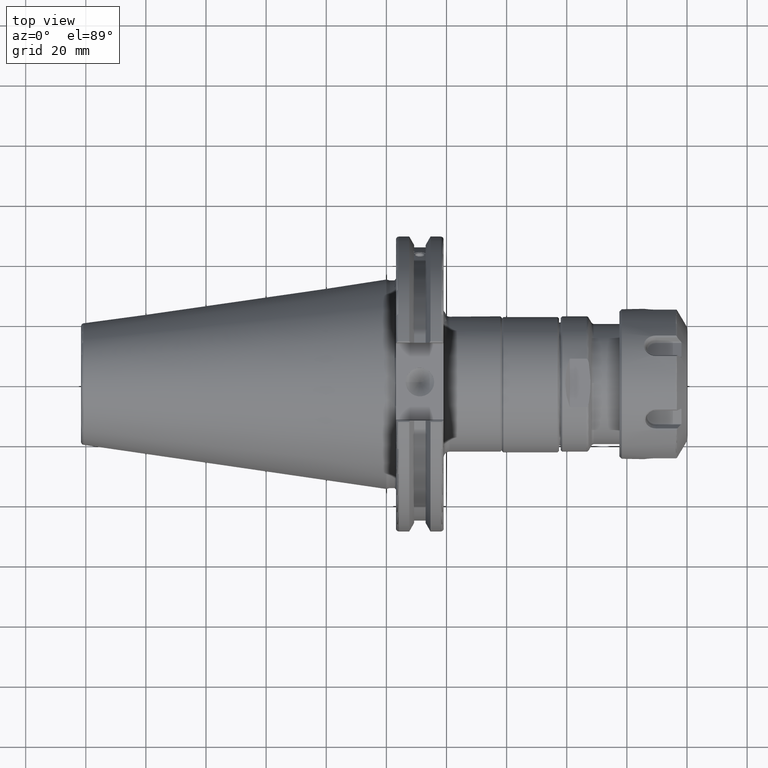
[diagram: clean part render]
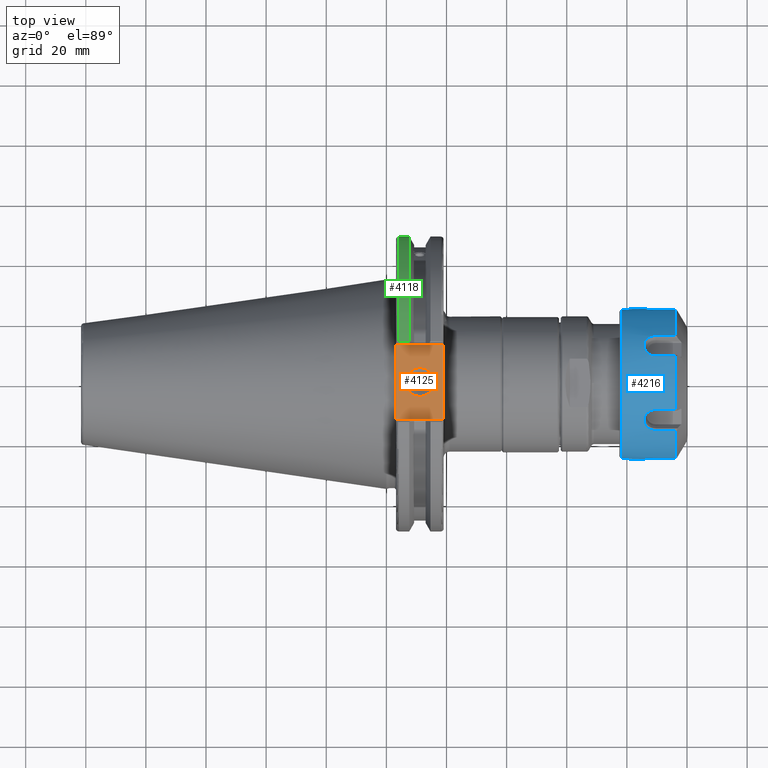
[diagram: same view with three faces highlighted in distinct colors, each labeled with its STEP entity id]
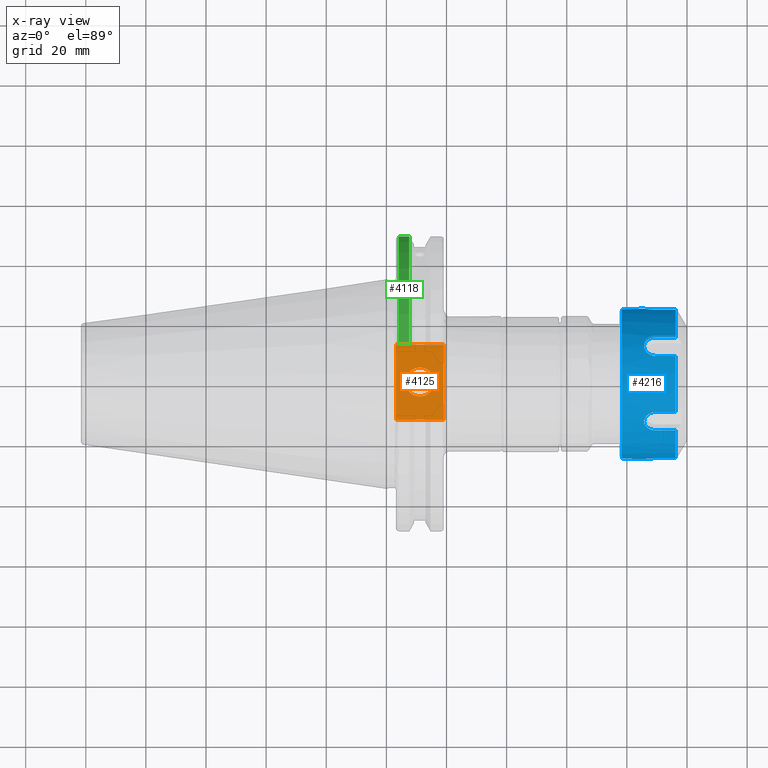
[diagram: x-ray of the same camera — body ghosted, the three highlighted faces saturated]
A machine part, top view with three faces highlighted in distinct colors.
The next image is the same camera in x-ray (body ghosted, the three faces saturated) — at least one of them is partly hidden behind the body in this view.
Their STEP definitions:

[orange] entity #4125 — the highlighted planar face has unit normal (0, 0, 1).
#242=FACE_BOUND('',#820,.T.);
#304=PLANE('',#4594);
#535=FACE_OUTER_BOUND('',#819,.T.);
#819=EDGE_LOOP('',(#3226,#3227,#3228,#3229));
#820=EDGE_LOOP('',(#3230));
#1020=LINE('',#6267,#1262);
#1064=LINE('',#6867,#1306);
#1092=LINE('',#7096,#1334);
#1094=LINE('',#7099,#1336);
#1262=VECTOR('',#5042,10.);
#1306=VECTOR('',#5244,10.);
#1334=VECTOR('',#5338,10.);
#1336=VECTOR('',#5342,10.);
#1571=CIRCLE('',#4586,4.7625);
#1761=VERTEX_POINT('',#6264);
#1762=VERTEX_POINT('',#6266);
#1848=VERTEX_POINT('',#6864);
#1849=VERTEX_POINT('',#6866);
#1895=VERTEX_POINT('',#7135);
#2180=EDGE_CURVE('',#1761,#1762,#1020,.T.);
#2294=EDGE_CURVE('',#1848,#1849,#1064,.T.);
#2357=EDGE_CURVE('',#1762,#1848,#1092,.T.);
#2359=EDGE_CURVE('',#1849,#1761,#1094,.T.);
#2374=EDGE_CURVE('',#1895,#1895,#1571,.T.);
#3226=ORIENTED_EDGE('',*,*,#2357,.F.);
#3227=ORIENTED_EDGE('',*,*,#2180,.F.);
#3228=ORIENTED_EDGE('',*,*,#2359,.F.);
#3229=ORIENTED_EDGE('',*,*,#2294,.F.);
#3230=ORIENTED_EDGE('',*,*,#2374,.T.);
#4125=ADVANCED_FACE('',(#535,#242),#304,.T.);
#4586=AXIS2_PLACEMENT_3D('',#7136,#5377,#5378);
#4594=AXIS2_PLACEMENT_3D('',#7145,#5394,#5395);
#5042=DIRECTION('',(0.,-1.,0.));
#5244=DIRECTION('',(0.,1.,0.));
#5338=DIRECTION('',(-1.,1.31581988103722E-16,0.));
#5342=DIRECTION('',(1.,0.,0.));
#5377=DIRECTION('center_axis',(0.,0.,-1.));
#5378=DIRECTION('ref_axis',(1.,0.,0.));
#5394=DIRECTION('center_axis',(0.,0.,1.));
#5395=DIRECTION('ref_axis',(1.,0.,0.));
#6264=CARTESIAN_POINT('',(19.05,12.45,37.719));
#6266=CARTESIAN_POINT('',(19.05,-12.45,37.719));
#6267=CARTESIAN_POINT('',(19.05,0.,37.719));
#6864=CARTESIAN_POINT('',(3.175,-12.45,37.719));
#6866=CARTESIAN_POINT('',(3.175,12.45,37.719));
#6867=CARTESIAN_POINT('',(3.175,24.60625,37.719));
#7096=CARTESIAN_POINT('',(10.63125,-12.45,37.719));
#7099=CARTESIAN_POINT('',(19.06875,12.45,37.719));
#7135=CARTESIAN_POINT('',(6.3716,-5.83238038093927E-16,37.719));
#7136=CARTESIAN_POINT('Origin',(11.1341,0.,37.719));
#7145=CARTESIAN_POINT('Origin',(18.0875,0.,37.719));

[blue] entity #4216 — the highlighted cylindrical surface (bore or boss wall) has radius 25 mm, axis along (1, 0, 0).
#164=B_SPLINE_CURVE_WITH_KNOTS('',3,(#7978,#7979,#7980,#7981,#7982,#7983,
#7984,#7985,#7986,#7987,#7988,#7989,#7990,#7991,#7992,#7993,#7994,#7995,
#7996,#7997,#7998,#7999,#8000,#8001,#8002,#8003),.UNSPECIFIED.,.F.,.F.,
(4,2,2,2,2,2,2,2,2,2,2,2,4),(9.9999995238631E-7,0.0879052907423527,0.176637565379742,
0.235903650970046,0.390130017504631,0.466901397524831,0.619877047493406,
0.772895245938568,0.849748430711965,1.00354549994743,1.06255814926592,1.15065991936563,
1.23696691744975),.UNSPECIFIED.);
#165=B_SPLINE_CURVE_WITH_KNOTS('',3,(#8011,#8012,#8013,#8014,#8015,#8016,
#8017,#8018,#8019,#8020,#8021,#8022,#8023,#8024,#8025,#8026,#8027,#8028,
#8029,#8030,#8031,#8032,#8033,#8034,#8035,#8036),.UNSPECIFIED.,.F.,.F.,
(4,2,2,2,2,2,2,2,2,2,2,2,4),(1.00000009417567E-6,0.0878138369275421,0.176555140054308,
0.235820765056358,0.389974853515028,0.466697048924996,0.619573178814066,
0.772490695512649,0.849291747057756,1.00296705428542,1.06195384990398,1.14997782321717,
1.23616298191316),.UNSPECIFIED.);
#166=B_SPLINE_CURVE_WITH_KNOTS('',3,(#8044,#8045,#8046,#8047,#8048,#8049,
#8050,#8051,#8052,#8053,#8054,#8055,#8056,#8057,#8058,#8059,#8060,#8061,
#8062,#8063,#8064,#8065,#8066,#8067,#8068,#8069),.UNSPECIFIED.,.F.,.F.,
(4,2,2,2,2,2,2,2,2,2,2,2,4),(9.99999951775687E-7,0.0878941569707288,0.176624334532777,
0.235888687428025,0.390110943020404,0.466875792134982,0.61983845664042,
0.772844514946801,0.849692191333624,1.003474767993,1.06248200532863,1.15057983966351,
1.23688736597224),.UNSPECIFIED.);
#167=B_SPLINE_CURVE_WITH_KNOTS('',3,(#8077,#8078,#8079,#8080,#8081,#8082,
#8083,#8084,#8085,#8086,#8087,#8088,#8089,#8090,#8091,#8092,#8093,#8094,
#8095,#8096,#8097,#8098,#8099,#8100,#8101,#8102),.UNSPECIFIED.,.F.,.F.,
(4,2,2,2,2,2,2,2,2,2,2,2,4),(9.99999952469577E-7,0.087905230227901,0.176637529735317,
0.23590362205516,0.390129919451193,0.466901259045231,0.619876828803479,
0.772894942890079,0.849748081258391,1.00354500406063,1.06255762506737,1.1506592888794,
1.2369661055211),.UNSPECIFIED.);
#168=B_SPLINE_CURVE_WITH_KNOTS('',3,(#8107,#8108,#8109,#8110,#8111,#8112,
#8113,#8114,#8115,#8116,#8117,#8118,#8119,#8120,#8121,#8122,#8123,#8124,
#8125,#8126,#8127,#8128,#8129,#8130,#8131,#8132),.UNSPECIFIED.,.F.,.F.,
(4,2,2,2,2,2,2,2,2,2,2,2,4),(1.00000009425893E-6,0.0878137755469969,0.176555099847401,
0.235820733272125,0.389974766086827,0.466696934474965,0.619573008826759,
0.772490466286766,0.849291481801536,1.00296667617739,1.06195345833607,1.14997734942518,
1.23616236019383),.UNSPECIFIED.);
#169=B_SPLINE_CURVE_WITH_KNOTS('',3,(#8140,#8141,#8142,#8143,#8144,#8145,
#8146,#8147,#8148,#8149,#8150,#8151,#8152,#8153,#8154,#8155,#8156,#8157,
#8158,#8159,#8160,#8161,#8162,#8163,#8164,#8165),.UNSPECIFIED.,.F.,.F.,
(4,2,2,2,2,2,2,2,2,2,2,2,4),(9.99999951900588E-7,0.0878942147625397,0.176624366940175,
0.23588871226361,0.390111034009128,0.466875921238402,0.619838663234569,
0.772844800309569,0.849692521299405,1.00347524440874,1.06248250865998,1.15058044952841,
1.2368881619258),.UNSPECIFIED.);
#424=CYLINDRICAL_SURFACE('',#4806,25.);
#626=FACE_OUTER_BOUND('',#933,.T.);
#933=EDGE_LOOP('',(#3671,#3672,#3673,#3674,#3675,#3676,#3677,#3678,#3679,
#3680,#3681,#3682,#3683,#3684,#3685,#3686,#3687,#3688,#3689,#3690,#3691,
#3692,#3693,#3694,#3695,#3696,#3697,#3698));
#1168=LINE('',#7971,#1410);
#1169=LINE('',#7976,#1411);
#1170=LINE('',#8005,#1412);
#1171=LINE('',#8009,#1413);
#1172=LINE('',#8038,#1414);
#1173=LINE('',#8042,#1415);
#1174=LINE('',#8071,#1416);
#1175=LINE('',#8075,#1417);
#1176=LINE('',#8103,#1418);
#1177=LINE('',#8105,#1419);
#1178=LINE('',#8134,#1420);
#1179=LINE('',#8138,#1421);
#1180=LINE('',#8166,#1422);
#1410=VECTOR('',#5884,25.);
#1411=VECTOR('',#5889,6.64722344657);
#1412=VECTOR('',#5890,6.647223564864);
#1413=VECTOR('',#5893,6.647222883786);
#1414=VECTOR('',#5894,6.647222910959);
#1415=VECTOR('',#5897,6.647223440681);
#1416=VECTOR('',#5898,6.647223598116);
#1417=VECTOR('',#5901,6.647223446385);
#1418=VECTOR('',#5902,6.647223564616);
#1419=VECTOR('',#5903,6.64722288378);
#1420=VECTOR('',#5904,6.647222910886);
#1421=VECTOR('',#5907,6.647223440838);
#1422=VECTOR('',#5908,6.647223598416);
#1690=CIRCLE('',#4805,25.);
#1691=CIRCLE('',#4807,25.);
#1692=CIRCLE('',#4808,25.);
#1693=CIRCLE('',#4809,25.);
#1694=CIRCLE('',#4810,25.);
#1695=CIRCLE('',#4811,25.);
#1696=CIRCLE('',#4812,25.);
#1697=CIRCLE('',#4813,25.);
#2064=VERTEX_POINT('',#7947);
#2065=VERTEX_POINT('',#7948);
#2066=VERTEX_POINT('',#7967);
#2067=VERTEX_POINT('',#7968);
#2068=VERTEX_POINT('',#7970);
#2069=VERTEX_POINT('',#7973);
#2070=VERTEX_POINT('',#7975);
#2071=VERTEX_POINT('',#7977);
#2072=VERTEX_POINT('',#8004);
#2073=VERTEX_POINT('',#8006);
#2074=VERTEX_POINT('',#8008);
#2075=VERTEX_POINT('',#8010);
#2076=VERTEX_POINT('',#8037);
#2077=VERTEX_POINT('',#8039);
#2078=VERTEX_POINT('',#8041);
#2079=VERTEX_POINT('',#8043);
#2080=VERTEX_POINT('',#8070);
#2081=VERTEX_POINT('',#8072);
#2082=VERTEX_POINT('',#8074);
#2083=VERTEX_POINT('',#8076);
#2084=VERTEX_POINT('',#8104);
#2085=VERTEX_POINT('',#8106);
#2086=VERTEX_POINT('',#8133);
#2087=VERTEX_POINT('',#8135);
#2088=VERTEX_POINT('',#8137);
#2089=VERTEX_POINT('',#8139);
#2613=EDGE_CURVE('',#2064,#2065,#1690,.T.);
#2616=EDGE_CURVE('',#2066,#2067,#1691,.T.);
#2617=EDGE_CURVE('',#2067,#2068,#1168,.T.);
#2618=EDGE_CURVE('',#2068,#2068,#1692,.T.);
#2619=EDGE_CURVE('',#2067,#2069,#1693,.T.);
#2620=EDGE_CURVE('',#2069,#2070,#1169,.T.);
#2621=EDGE_CURVE('',#2070,#2071,#164,.T.);
#2622=EDGE_CURVE('',#2071,#2072,#1170,.T.);
#2623=EDGE_CURVE('',#2072,#2073,#1694,.T.);
#2624=EDGE_CURVE('',#2073,#2074,#1171,.T.);
#2625=EDGE_CURVE('',#2074,#2075,#165,.T.);
#2626=EDGE_CURVE('',#2075,#2076,#1172,.T.);
#2627=EDGE_CURVE('',#2076,#2077,#1695,.T.);
#2628=EDGE_CURVE('',#2077,#2078,#1173,.T.);
#2629=EDGE_CURVE('',#2078,#2079,#166,.T.);
#2630=EDGE_CURVE('',#2079,#2080,#1174,.T.);
#2631=EDGE_CURVE('',#2080,#2081,#1696,.T.);
#2632=EDGE_CURVE('',#2081,#2082,#1175,.T.);
#2633=EDGE_CURVE('',#2082,#2083,#167,.T.);
#2634=EDGE_CURVE('',#2083,#2064,#1176,.T.);
#2635=EDGE_CURVE('',#2065,#2084,#1177,.T.);
#2636=EDGE_CURVE('',#2084,#2085,#168,.T.);
#2637=EDGE_CURVE('',#2085,#2086,#1178,.T.);
#2638=EDGE_CURVE('',#2086,#2087,#1697,.T.);
#2639=EDGE_CURVE('',#2087,#2088,#1179,.T.);
#2640=EDGE_CURVE('',#2088,#2089,#169,.T.);
#2641=EDGE_CURVE('',#2089,#2066,#1180,.T.);
#3671=ORIENTED_EDGE('',*,*,#2616,.T.);
#3672=ORIENTED_EDGE('',*,*,#2617,.T.);
#3673=ORIENTED_EDGE('',*,*,#2618,.F.);
#3674=ORIENTED_EDGE('',*,*,#2617,.F.);
#3675=ORIENTED_EDGE('',*,*,#2619,.T.);
#3676=ORIENTED_EDGE('',*,*,#2620,.T.);
#3677=ORIENTED_EDGE('',*,*,#2621,.T.);
#3678=ORIENTED_EDGE('',*,*,#2622,.T.);
#3679=ORIENTED_EDGE('',*,*,#2623,.T.);
#3680=ORIENTED_EDGE('',*,*,#2624,.T.);
#3681=ORIENTED_EDGE('',*,*,#2625,.T.);
#3682=ORIENTED_EDGE('',*,*,#2626,.T.);
#3683=ORIENTED_EDGE('',*,*,#2627,.T.);
#3684=ORIENTED_EDGE('',*,*,#2628,.T.);
#3685=ORIENTED_EDGE('',*,*,#2629,.T.);
#3686=ORIENTED_EDGE('',*,*,#2630,.T.);
#3687=ORIENTED_EDGE('',*,*,#2631,.T.);
#3688=ORIENTED_EDGE('',*,*,#2632,.T.);
#3689=ORIENTED_EDGE('',*,*,#2633,.T.);
#3690=ORIENTED_EDGE('',*,*,#2634,.T.);
#3691=ORIENTED_EDGE('',*,*,#2613,.T.);
#3692=ORIENTED_EDGE('',*,*,#2635,.T.);
#3693=ORIENTED_EDGE('',*,*,#2636,.T.);
#3694=ORIENTED_EDGE('',*,*,#2637,.T.);
#3695=ORIENTED_EDGE('',*,*,#2638,.T.);
#3696=ORIENTED_EDGE('',*,*,#2639,.T.);
#3697=ORIENTED_EDGE('',*,*,#2640,.T.);
#3698=ORIENTED_EDGE('',*,*,#2641,.T.);
#4216=ADVANCED_FACE('',(#626),#424,.T.);
#4805=AXIS2_PLACEMENT_3D('',#7949,#5878,#5879);
#4806=AXIS2_PLACEMENT_3D('',#7966,#5880,#5881);
#4807=AXIS2_PLACEMENT_3D('',#7969,#5882,#5883);
#4808=AXIS2_PLACEMENT_3D('',#7972,#5885,#5886);
#4809=AXIS2_PLACEMENT_3D('',#7974,#5887,#5888);
#4810=AXIS2_PLACEMENT_3D('',#8007,#5891,#5892);
#4811=AXIS2_PLACEMENT_3D('',#8040,#5895,#5896);
#4812=AXIS2_PLACEMENT_3D('',#8073,#5899,#5900);
#4813=AXIS2_PLACEMENT_3D('',#8136,#5905,#5906);
#5878=DIRECTION('center_axis',(-1.,0.,0.));
#5879=DIRECTION('ref_axis',(0.,-0.631277286733596,-0.775557210819595));
#5880=DIRECTION('center_axis',(1.,0.,0.));
#5881=DIRECTION('ref_axis',(0.,0.,-1.));
#5882=DIRECTION('center_axis',(-1.,0.,0.));
#5883=DIRECTION('ref_axis',(0.,0.,1.));
#5884=DIRECTION('',(-1.,0.,0.));
#5885=DIRECTION('center_axis',(-1.,0.,0.));
#5886=DIRECTION('ref_axis',(0.,0.,-1.));
#5887=DIRECTION('center_axis',(-1.,0.,0.));
#5888=DIRECTION('ref_axis',(0.,0.,1.));
#5889=DIRECTION('',(-1.,-1.159560992356E-10,2.11509500553E-11));
#5890=DIRECTION('',(1.,-1.276633033488E-10,1.526081585287E-10));
#5891=DIRECTION('center_axis',(-1.,0.,0.));
#5892=DIRECTION('ref_axis',(0.,0.631277286733596,0.775557210819595));
#5893=DIRECTION('',(-1.,7.686741409635E-11,-2.238710456628E-10));
#5894=DIRECTION('',(1.,-7.310370522877E-11,-1.968159154923E-10));
#5895=DIRECTION('center_axis',(-1.,0.,0.));
#5896=DIRECTION('ref_axis',(0.,0.987290890024773,-0.158923561733596));
#5897=DIRECTION('',(-1.,7.459753134974E-11,8.763849718101E-11));
#5898=DIRECTION('',(1.,2.171785744726E-10,3.807106787261E-11));
#5899=DIRECTION('center_axis',(-1.,0.,0.));
#5900=DIRECTION('ref_axis',(0.,0.,-1.));
#5901=DIRECTION('',(-1.,1.158545507345E-10,-2.113331268409E-11));
#5902=DIRECTION('',(1.,1.275572118917E-10,-1.524830935366E-10));
#5903=DIRECTION('',(-1.,-7.687115535743E-11,2.238859438988E-10));
#5904=DIRECTION('',(1.,7.311706687595E-11,1.968496536516E-10));
#5905=DIRECTION('center_axis',(-1.,0.,0.));
#5906=DIRECTION('ref_axis',(0.,-0.987290890024773,0.158923561733596));
#5907=DIRECTION('',(-1.,-7.46531157925E-11,-8.770583987134E-11));
#5908=DIRECTION('',(1.,-2.173739217127E-10,-3.81079460111E-11));
#7947=CARTESIAN_POINT('',(7.497223250267,-15.78193216834,-19.38893027049));
#7948=CARTESIAN_POINT('',(7.497223250267,-24.68227225062,-3.97308904334));
#7949=CARTESIAN_POINT('Origin',(7.497223250267,0.,0.));
#7966=CARTESIAN_POINT('Origin',(-11.25,0.,0.));
#7967=CARTESIAN_POINT('',(7.497223250268,-8.90034008228,23.36201931383));
#7968=CARTESIAN_POINT('',(7.497223250268,-3.06161699786838E-15,25.));
#7969=CARTESIAN_POINT('Origin',(7.497223250267,0.,0.));
#7970=CARTESIAN_POINT('',(-10.45,0.,25.));
#7971=CARTESIAN_POINT('',(-11.25,-3.06161699786838E-15,25.));
#7972=CARTESIAN_POINT('Origin',(-10.45,0.,0.));
#7973=CARTESIAN_POINT('',(7.497223250267,8.90034008228,23.36201931383));
#7974=CARTESIAN_POINT('Origin',(7.497223250267,0.,0.));
#7975=CARTESIAN_POINT('',(0.849999803697,8.900340081509,23.36201931397));
#7976=CARTESIAN_POINT('',(7.497223250267,8.90034008228,23.36201931383));
#7977=CARTESIAN_POINT('',(0.849999685403604,15.7819321692076,19.3889302699045));
#7978=CARTESIAN_POINT('Ctrl Pts',(0.849999803697697,8.90034008142218,23.3620193141567));
#7979=CARTESIAN_POINT('Ctrl Pts',(0.556988214806367,8.89906306446611,23.3625058254058));
#7980=CARTESIAN_POINT('Ctrl Pts',(0.26261724777573,8.93153175889461,23.3502062834946));
#7981=CARTESIAN_POINT('Ctrl Pts',(-0.31125534425957,9.05580002296358,23.3022952116997));
#7982=CARTESIAN_POINT('Ctrl Pts',(-0.593923216593934,9.14887656054965,23.2661811432127));
#7983=CARTESIAN_POINT('Ctrl Pts',(-1.04056938179903,9.35159728105322,23.1852381718461));
#7984=CARTESIAN_POINT('Ctrl Pts',(-1.21262512280427,9.44524603269654,23.1473582448027));
#7985=CARTESIAN_POINT('Ctrl Pts',(-1.80200428015579,9.82286285775052,22.9912699438263));
#7986=CARTESIAN_POINT('Ctrl Pts',(-2.16698210272784,10.1683862390945,22.8428160957234));
#7987=CARTESIAN_POINT('Ctrl Pts',(-2.59176378383641,10.7606138713495,22.5667088807953));
#7988=CARTESIAN_POINT('Ctrl Pts',(-2.7113454614375,10.9677985476459,22.466974573432));
#7989=CARTESIAN_POINT('Ctrl Pts',(-3.00077380839491,11.6099006832519,22.1458509566706));
#7990=CARTESIAN_POINT('Ctrl Pts',(-3.09929483965554,12.0593085624536,21.9052093593481));
#7991=CARTESIAN_POINT('Ctrl Pts',(-3.09776452633922,12.9511394909136,21.3900269627963));
#7992=CARTESIAN_POINT('Ctrl Pts',(-2.99750238481055,13.3841619924121,21.1208830779851));
#7993=CARTESIAN_POINT('Ctrl Pts',(-2.7062196300935,13.9819654737833,20.7258782143283));
#7994=CARTESIAN_POINT('Ctrl Pts',(-2.58612454090403,14.1712825668685,20.5966440251347));
#7995=CARTESIAN_POINT('Ctrl Pts',(-2.1603467743026,14.7040545894526,20.2232287059954));
#7996=CARTESIAN_POINT('Ctrl Pts',(-1.79444321211271,15.0055297377623,19.9980251897456));
#7997=CARTESIAN_POINT('Ctrl Pts',(-1.20143698934867,15.3289483623426,19.7493326814338));
#7998=CARTESIAN_POINT('Ctrl Pts',(-1.02817443647387,15.4085047352194,19.6871927068306));
#7999=CARTESIAN_POINT('Ctrl Pts',(-0.58042265698393,15.5788973434881,19.5528729525399));
#8000=CARTESIAN_POINT('Ctrl Pts',(-0.297961571865993,15.6556420407217,19.491156670446));
#8001=CARTESIAN_POINT('Ctrl Pts',(0.271006084886863,15.7568242876686,19.4094469361681));
#8002=CARTESIAN_POINT('Ctrl Pts',(0.561474266649588,15.7830370456073,19.3880309378373));
#8003=CARTESIAN_POINT('Ctrl Pts',(0.849999685406121,15.7819321695438,19.3889302695099));
#8004=CARTESIAN_POINT('',(7.497223250267,15.78193216834,19.38893027049));
#8005=CARTESIAN_POINT('',(0.8499996854036,15.78193216919,19.38893026948));
#8006=CARTESIAN_POINT('',(7.497223250267,24.68227225062,3.97308904334));
#8007=CARTESIAN_POINT('Origin',(7.497223250267,0.,0.));
#8008=CARTESIAN_POINT('',(0.850000366480997,24.6822722506958,3.97308904208401));
#8009=CARTESIAN_POINT('',(7.497223250267,24.68227225062,3.97308904334));
#8010=CARTESIAN_POINT('',(0.850000339308605,24.6822722507043,-3.97308904224118));
#8011=CARTESIAN_POINT('Ctrl Pts',(0.850000366478154,24.6822722509095,3.97308904153725));
#8012=CARTESIAN_POINT('Ctrl Pts',(0.557294497669207,24.6820409332602,3.97452607079518));
#8013=CARTESIAN_POINT('Ctrl Pts',(0.263034905527892,24.6876282992806,3.94022707287879));
#8014=CARTESIAN_POINT('Ctrl Pts',(-0.310624708582617,24.7082532173941,3.80876574427735));
#8015=CARTESIAN_POINT('Ctrl Pts',(-0.593535322999683,24.7235180287989,3.71009378532804));
#8016=CARTESIAN_POINT('Ctrl Pts',(-1.04042566812709,24.7547905938333,3.49399302569406));
#8017=CARTESIAN_POINT('Ctrl Pts',(-1.21254919832008,24.7688154773776,3.39391485580949));
#8018=CARTESIAN_POINT('Ctrl Pts',(-1.80198115808831,24.8224544368331,2.98879308315158));
#8019=CARTESIAN_POINT('Ctrl Pts',(-2.16697388575954,24.8666505619373,2.61535441741271));
#8020=CARTESIAN_POINT('Ctrl Pts',(-2.59178778931038,24.92365351717,1.96434603146938));
#8021=CARTESIAN_POINT('Ctrl Pts',(-2.71136848645338,24.9408733026292,1.73504792986882));
#8022=CARTESIAN_POINT('Ctrl Pts',(-3.00078606826906,24.9838218195907,1.01840807604434));
#8023=CARTESIAN_POINT('Ctrl Pts',(-3.0993028419261,25.0001233489757,0.508880440566308));
#8024=CARTESIAN_POINT('Ctrl Pts',(-3.09775592856053,24.9998751658127,-0.521068163364782));
#8025=CARTESIAN_POINT('Ctrl Pts',(-2.99748962718334,24.9833001654694,-1.03064042731025));
#8026=CARTESIAN_POINT('Ctrl Pts',(-2.70618364407116,24.9401147277223,-1.74587069260613));
#8027=CARTESIAN_POINT('Ctrl Pts',(-2.58608154336521,24.9228521354282,-1.97444615940644));
#8028=CARTESIAN_POINT('Ctrl Pts',(-2.16030739196055,24.8658522836497,-2.62250914857131));
#8029=CARTESIAN_POINT('Ctrl Pts',(-1.79436689913953,24.8215515646109,-2.99625080202018));
#8030=CARTESIAN_POINT('Ctrl Pts',(-1.20119063797433,24.7678777919271,-3.40074094799123));
#8031=CARTESIAN_POINT('Ctrl Pts',(-1.02780726547281,24.7538337943837,-3.5007558388354));
#8032=CARTESIAN_POINT('Ctrl Pts',(-0.57993242825243,24.7227037314635,-3.71548078628951));
#8033=CARTESIAN_POINT('Ctrl Pts',(-0.297500400940775,24.7076344943419,-3.8127559573514));
#8034=CARTESIAN_POINT('Ctrl Pts',(0.271335149640932,24.6874811043476,-3.94111771153634));
#8035=CARTESIAN_POINT('Ctrl Pts',(0.561629895983728,24.6820500906169,-3.97446918196907));
#8036=CARTESIAN_POINT('Ctrl Pts',(0.850000339305959,24.6822722508806,-3.97308904171685));
#8037=CARTESIAN_POINT('',(7.497223250268,24.68227225062,-3.97308904334));
#8038=CARTESIAN_POINT('',(0.8500003393086,24.68227225111,-3.973089042032));
#8039=CARTESIAN_POINT('',(7.497223250267,15.78193216834,-19.38893027049));
#8040=CARTESIAN_POINT('Origin',(7.497223250267,0.,0.));
#8041=CARTESIAN_POINT('',(0.8499998095868,15.78193216884,-19.38893026991));
#8042=CARTESIAN_POINT('',(7.497223250267,15.78193216834,-19.38893027049));
#8043=CARTESIAN_POINT('',(0.849999652151898,8.9003400812355,-23.3620193143348));
#8044=CARTESIAN_POINT('Ctrl Pts',(0.849999809587455,15.7819321690314,-19.388930269927));
#8045=CARTESIAN_POINT('Ctrl Pts',(0.557025369885156,15.7829980050107,-19.3880627155599));
#8046=CARTESIAN_POINT('Ctrl Pts',(0.262675665419089,15.7561118985817,-19.4100316628817));
#8047=CARTESIAN_POINT('Ctrl Pts',(-0.311159833993218,15.6525006411461,-19.4936835675112));
#8048=CARTESIAN_POINT('Ctrl Pts',(-0.593840633201923,15.5746913168734,-19.5562296068684));
#8049=CARTESIAN_POINT('Ctrl Pts',(-1.04049668297782,15.403239164722,-19.6913144147476));
#8050=CARTESIAN_POINT('Ctrl Pts',(-1.21255491236126,15.3236123662618,-19.7534748809016));
#8051=CARTESIAN_POINT('Ctrl Pts',(-1.80194679962227,14.9996337962951,-20.0024526328214));
#8052=CARTESIAN_POINT('Ctrl Pts',(-2.1669397631711,14.6983102699169,-20.2274569151732));
#8053=CARTESIAN_POINT('Ctrl Pts',(-2.59173725648885,14.1630745020536,-20.6022930459227));
#8054=CARTESIAN_POINT('Ctrl Pts',(-2.71132198135434,13.9731117990341,-20.7318522175723));
#8055=CARTESIAN_POINT('Ctrl Pts',(-3.00075773487278,13.373969361295,-21.1273624749268));
#8056=CARTESIAN_POINT('Ctrl Pts',(-3.09928659367179,12.9408668890439,-21.3962398800997));
#8057=CARTESIAN_POINT('Ctrl Pts',(-3.097773088459,12.0487946985416,-21.910997549218));
#8058=CARTESIAN_POINT('Ctrl Pts',(-2.99751888676549,11.5991963059453,-22.1514365564187));
#8059=CARTESIAN_POINT('Ctrl Pts',(-2.70624789524791,10.9582063227418,-22.4716510718305));
#8060=CARTESIAN_POINT('Ctrl Pts',(-2.58615666054098,10.7516266524235,-22.5709884782248));
#8061=CARTESIAN_POINT('Ctrl Pts',(-2.16039048328996,10.1618512048838,-22.8456774849883));
#8062=CARTESIAN_POINT('Ctrl Pts',(-1.7945021387392,9.81608449697471,-22.9941606065572));
#8063=CARTESIAN_POINT('Ctrl Pts',(-1.20151793692967,9.4389954616508,-23.1499063580654));
#8064=CARTESIAN_POINT('Ctrl Pts',(-1.028263612225,9.34540144282152,-23.1877348445077));
#8065=CARTESIAN_POINT('Ctrl Pts',(-0.580512521766439,9.14386869688795,-23.2681445561124));
#8066=CARTESIAN_POINT('Ctrl Pts',(-0.298040711577729,9.05203886583955,-23.3037531206632));
#8067=CARTESIAN_POINT('Ctrl Pts',(0.27095582987275,8.93066685711114,-23.3505317486243));
#8068=CARTESIAN_POINT('Ctrl Pts',(0.561450721911353,8.89900623363858,-23.3625274765176));
#8069=CARTESIAN_POINT('Ctrl Pts',(0.849999652154695,8.90034008067135,-23.3620193144427));
#8070=CARTESIAN_POINT('',(7.497223250268,8.90034008228,-23.36201931383));
#8071=CARTESIAN_POINT('',(0.8499996521519,8.900340080836,-23.36201931408));
#8072=CARTESIAN_POINT('',(7.497223250267,-8.90034008228,-23.36201931383));
#8073=CARTESIAN_POINT('Origin',(7.497223250267,0.,0.));
#8074=CARTESIAN_POINT('',(0.849999803882,-8.90034008151,-23.36201931397));
#8075=CARTESIAN_POINT('',(7.497223250267,-8.90034008228,-23.36201931383));
#8076=CARTESIAN_POINT('',(0.849999685651404,-15.7819321692076,-19.3889302699042));
#8077=CARTESIAN_POINT('Ctrl Pts',(0.849999803882699,-8.90034008142275,-23.3620193141565));
#8078=CARTESIAN_POINT('Ctrl Pts',(0.556988417090433,-8.89906298797539,-23.3625058545468));
#8079=CARTESIAN_POINT('Ctrl Pts',(0.262617484675315,-8.93153172454629,-23.350206296481));
#8080=CARTESIAN_POINT('Ctrl Pts',(-0.31125503345258,-9.05579994887462,-23.3022952405232));
#8081=CARTESIAN_POINT('Ctrl Pts',(-0.593923175177775,-9.14887653203464,
-23.2661811549686));
#8082=CARTESIAN_POINT('Ctrl Pts',(-1.04056961939119,-9.35159738833183,-23.1852381287642));
#8083=CARTESIAN_POINT('Ctrl Pts',(-1.21262543478727,-9.44524620134965,-23.1473581763874));
#8084=CARTESIAN_POINT('Ctrl Pts',(-1.80200461178382,-9.82286314551591,-22.9912698215014));
#8085=CARTESIAN_POINT('Ctrl Pts',(-2.16698238730809,-10.1683865399387,-22.842815963009));
#8086=CARTESIAN_POINT('Ctrl Pts',(-2.59176401185802,-10.7606142381187,-22.5667087060453));
#8087=CARTESIAN_POINT('Ctrl Pts',(-2.71134566157983,-10.9677989211266,-22.4669743912144));
#8088=CARTESIAN_POINT('Ctrl Pts',(-3.00077392462613,-11.6099010788075,-22.145850749752));
#8089=CARTESIAN_POINT('Ctrl Pts',(-3.09929490237588,-12.0593089791445,-21.9052091303768));
#8090=CARTESIAN_POINT('Ctrl Pts',(-3.09776446127798,-12.9511399168306,-21.3900267050165));
#8091=CARTESIAN_POINT('Ctrl Pts',(-2.99750226544645,-13.3841623896175,-21.1208828264868));
#8092=CARTESIAN_POINT('Ctrl Pts',(-2.70621940029455,-13.981965864473,-20.7258779506717));
#8093=CARTESIAN_POINT('Ctrl Pts',(-2.58612428050563,-14.1712829492659,-20.5966437619939));
#8094=CARTESIAN_POINT('Ctrl Pts',(-2.16034649156988,-14.7040548326557,-20.2232285257743));
#8095=CARTESIAN_POINT('Ctrl Pts',(-1.79444286027964,-15.0055300282739,-19.9980249715318));
#8096=CARTESIAN_POINT('Ctrl Pts',(-1.20143633648498,-15.3289486747771,-19.7493324392019));
#8097=CARTESIAN_POINT('Ctrl Pts',(-1.02817358892061,-15.4085050936274,-19.6871924264029));
#8098=CARTESIAN_POINT('Ctrl Pts',(-0.580421638460918,-15.578897663397,-19.5528726972162));
#8099=CARTESIAN_POINT('Ctrl Pts',(-0.29796063247918,-15.6556422784557,-19.4911564791808));
#8100=CARTESIAN_POINT('Ctrl Pts',(0.271006732571219,-15.7568243368419,-19.4094468957558));
#8101=CARTESIAN_POINT('Ctrl Pts',(0.561474566374845,-15.783037008791,-19.3880309678045));
#8102=CARTESIAN_POINT('Ctrl Pts',(0.849999685653918,-15.7819321695437,-19.3889302695101));
#8103=CARTESIAN_POINT('',(0.8499996856514,-15.78193216919,-19.38893026948));
#8104=CARTESIAN_POINT('',(0.850000366487002,-24.6822722506944,-3.97308904208506));
#8105=CARTESIAN_POINT('',(7.497223250267,-24.68227225062,-3.97308904334));
#8106=CARTESIAN_POINT('',(0.850000339381803,-24.6822722507043,3.97308904224024));
#8107=CARTESIAN_POINT('Ctrl Pts',(0.850000366484182,-24.6822722509085,-3.97308904154322));
#8108=CARTESIAN_POINT('Ctrl Pts',(0.557294702605885,-24.6820409227316,-3.9745261362024));
#8109=CARTESIAN_POINT('Ctrl Pts',(0.263035170971378,-24.6876282932209,-3.94022710982265));
#8110=CARTESIAN_POINT('Ctrl Pts',(-0.310624355114414,-24.7082532025874,
-3.80876584035195));
#8111=CARTESIAN_POINT('Ctrl Pts',(-0.593535201964998,-24.723518019902,-3.71009384760263));
#8112=CARTESIAN_POINT('Ctrl Pts',(-1.04042581583032,-24.7547906037586,-3.49399295657698));
#8113=CARTESIAN_POINT('Ctrl Pts',(-1.21254943345289,-24.7688154964352,-3.39391471935169));
#8114=CARTESIAN_POINT('Ctrl Pts',(-1.80198145796997,-24.8224544699939,-2.98879281324205));
#8115=CARTESIAN_POINT('Ctrl Pts',(-2.1669741424005,-24.8666505944732,-2.61535411204491));
#8116=CARTESIAN_POINT('Ctrl Pts',(-2.5917879829837,-24.9236535443726,-1.96434568784534));
#8117=CARTESIAN_POINT('Ctrl Pts',(-2.71136865435767,-24.9408733268036,-1.73504758349885));
#8118=CARTESIAN_POINT('Ctrl Pts',(-3.00078616250206,-24.983821834725,-1.01840770992754));
#8119=CARTESIAN_POINT('Ctrl Pts',(-3.099302894733,-25.0001233574372,-0.508880044269458));
#8120=CARTESIAN_POINT('Ctrl Pts',(-3.09775587354793,-24.9998751571517,0.521068585587671));
#8121=CARTESIAN_POINT('Ctrl Pts',(-2.9974895308937,-24.9833001498174,1.03064081999437));
#8122=CARTESIAN_POINT('Ctrl Pts',(-2.70618343974291,-24.9401146985933,1.74587110800806));
#8123=CARTESIAN_POINT('Ctrl Pts',(-2.58608130801534,-24.922852102263,1.97444657782198));
#8124=CARTESIAN_POINT('Ctrl Pts',(-2.16030712376141,-24.8658522502598,2.62250944547686));
#8125=CARTESIAN_POINT('Ctrl Pts',(-1.79436656231922,-24.821551523842,2.99625113685204));
#8126=CARTESIAN_POINT('Ctrl Pts',(-1.20119005677232,-24.7678777440183,3.40074129844431));
#8127=CARTESIAN_POINT('Ctrl Pts',(-1.02780650851633,-24.7538337373964,3.50075624225715));
#8128=CARTESIAN_POINT('Ctrl Pts',(-0.579931522851014,-24.722703677284,3.7154811445682));
#8129=CARTESIAN_POINT('Ctrl Pts',(-0.297499575773513,-24.7076344531182,
3.81275622307523));
#8130=CARTESIAN_POINT('Ctrl Pts',(0.271335721323621,-24.6874810952106,3.94111776663741));
#8131=CARTESIAN_POINT('Ctrl Pts',(0.561630156143936,-24.6820500978386,3.97446913710484));
#8132=CARTESIAN_POINT('Ctrl Pts',(0.850000339379152,-24.6822722508809,3.97308904171478));
#8133=CARTESIAN_POINT('',(7.497223250268,-24.68227225062,3.97308904334));
#8134=CARTESIAN_POINT('',(0.8500003393818,-24.68227225111,3.973089042031));
#8135=CARTESIAN_POINT('',(7.497223250267,-15.78193216834,19.38893027049));
#8136=CARTESIAN_POINT('Origin',(7.497223250267,0.,0.));
#8137=CARTESIAN_POINT('',(0.8499998094295,-15.78193216884,19.38893026991));
#8138=CARTESIAN_POINT('',(7.497223250267,-15.78193216834,19.38893027049));
#8139=CARTESIAN_POINT('',(0.849999651852296,-8.90034008123596,23.3620193143355));
#8140=CARTESIAN_POINT('Ctrl Pts',(0.849999809430154,-15.7819321690312,19.3889302699272));
#8141=CARTESIAN_POINT('Ctrl Pts',(0.557025176716573,-15.7829979439113,19.3880627652928));
#8142=CARTESIAN_POINT('Ctrl Pts',(0.262675441155053,-15.7561118716186,19.4100316849424));
#8143=CARTESIAN_POINT('Ctrl Pts',(-0.311160122982868,-15.6525005835907,
19.4936836136848));
#8144=CARTESIAN_POINT('Ctrl Pts',(-0.593840657899816,-15.5746912975547,
19.5562296216016));
#8145=CARTESIAN_POINT('Ctrl Pts',(-1.04049643030193,-15.4032392626439,19.6913143379221));
#8146=CARTESIAN_POINT('Ctrl Pts',(-1.21255458411809,-15.3236125181208,19.7534747626191));
#8147=CARTESIAN_POINT('Ctrl Pts',(-1.80194644863257,-14.9996340588767,20.0024524351356));
#8148=CARTESIAN_POINT('Ctrl Pts',(-2.16693946096328,-14.6983105528687,20.2274567082299));
#8149=CARTESIAN_POINT('Ctrl Pts',(-2.59173701581922,-14.1630748551654,20.6022928030051));
#8150=CARTESIAN_POINT('Ctrl Pts',(-2.71132176997088,-13.9731121627719,20.7318519722849));
#8151=CARTESIAN_POINT('Ctrl Pts',(-3.00075761371708,-13.3739697563675,21.1273622244387));
#8152=CARTESIAN_POINT('Ctrl Pts',(-3.09928652935458,-12.9408673106324,21.3962396247926));
#8153=CARTESIAN_POINT('Ctrl Pts',(-3.09777315511812,-12.0487951500806,21.9109973007026));
#8154=CARTESIAN_POINT('Ctrl Pts',(-2.99751901139665,-11.5991967419954,22.1514363278298));
#8155=CARTESIAN_POINT('Ctrl Pts',(-2.70624813634038,-10.958206767372,22.4716508551115));
#8156=CARTESIAN_POINT('Ctrl Pts',(-2.58615693282283,-10.7516270905343,22.5709882695758));
#8157=CARTESIAN_POINT('Ctrl Pts',(-2.16039077508482,-10.1618514895994,22.8456773615828));
#8158=CARTESIAN_POINT('Ctrl Pts',(-1.79450249984228,-9.81608484131413,22.994160459751));
#8159=CARTESIAN_POINT('Ctrl Pts',(-1.20151861412989,-9.43899584111834,23.1499062030972));
#8160=CARTESIAN_POINT('Ctrl Pts',(-1.02826449407105,-9.34540188189384,23.1877346674683));
#8161=CARTESIAN_POINT('Ctrl Pts',(-0.580513586069658,-9.14386909545676,
23.2681443998544));
#8162=CARTESIAN_POINT('Ctrl Pts',(-0.29804169637308,-9.05203916401583,23.303753005114));
#8163=CARTESIAN_POINT('Ctrl Pts',(0.27095515048919,-8.93066691968988,23.3505317251203));
#8164=CARTESIAN_POINT('Ctrl Pts',(0.561450406477078,-8.89900618790939,23.3625274939392));
#8165=CARTESIAN_POINT('Ctrl Pts',(0.849999651855094,-8.90034008067152,23.3620193144427));
#8166=CARTESIAN_POINT('',(0.8499996518523,-8.900340080835,23.36201931408));

[green] entity #4118 — the highlighted cylindrical surface (partial cylindrical patch) has radius 49.2125 mm, axis along (1, 0, 0).
#395=CYLINDRICAL_SURFACE('',#4582,49.2125);
#528=FACE_OUTER_BOUND('',#812,.T.);
#812=EDGE_LOOP('',(#3194,#3195,#3196,#3197));
#1088=LINE('',#7074,#1330);
#1103=LINE('',#7127,#1345);
#1330=VECTOR('',#5308,10.);
#1345=VECTOR('',#5367,10.);
#1541=CIRCLE('',#4513,49.2125);
#1562=CIRCLE('',#4558,49.2125);
#1828=VERTEX_POINT('',#6799);
#1829=VERTEX_POINT('',#6803);
#1881=VERTEX_POINT('',#7048);
#1882=VERTEX_POINT('',#7057);
#2266=EDGE_CURVE('',#1828,#1829,#1541,.T.);
#2344=EDGE_CURVE('',#1881,#1882,#1562,.T.);
#2347=EDGE_CURVE('',#1882,#1828,#1088,.T.);
#2371=EDGE_CURVE('',#1829,#1881,#1103,.T.);
#3194=ORIENTED_EDGE('',*,*,#2344,.F.);
#3195=ORIENTED_EDGE('',*,*,#2371,.F.);
#3196=ORIENTED_EDGE('',*,*,#2266,.F.);
#3197=ORIENTED_EDGE('',*,*,#2347,.F.);
#4118=ADVANCED_FACE('',(#528),#395,.T.);
#4513=AXIS2_PLACEMENT_3D('',#6804,#5180,#5181);
#4558=AXIS2_PLACEMENT_3D('',#7058,#5304,#5305);
#4582=AXIS2_PLACEMENT_3D('',#7128,#5368,#5369);
#5180=DIRECTION('center_axis',(1.,0.,0.));
#5181=DIRECTION('ref_axis',(0.,0.,-1.));
#5304=DIRECTION('center_axis',(-1.,0.,0.));
#5305=DIRECTION('ref_axis',(0.,1.,-6.12323399573677E-17));
#5308=DIRECTION('',(1.,0.,0.));
#5367=DIRECTION('',(-1.,0.,0.));
#5368=DIRECTION('center_axis',(1.,0.,0.));
#5369=DIRECTION('ref_axis',(0.,1.,0.));
#6799=CARTESIAN_POINT('',(7.60799096595127,13.4317035994433,-47.3440544806494));
#6803=CARTESIAN_POINT('',(7.60799096595127,13.4317035994433,47.3440544806494));
#6804=CARTESIAN_POINT('Origin',(7.60799096595127,0.,0.));
#7048=CARTESIAN_POINT('',(4.175,13.4317035994433,47.3440544806494));
#7057=CARTESIAN_POINT('',(4.175,13.4317035994433,-47.3440544806494));
#7058=CARTESIAN_POINT('Origin',(4.175,0.,0.));
#7074=CARTESIAN_POINT('',(5.39149548297563,13.4317035994433,-47.3440544806494));
#7127=CARTESIAN_POINT('',(5.39149548297563,13.4317035994433,47.3440544806494));
#7128=CARTESIAN_POINT('Origin',(5.39149548297563,0.,0.));